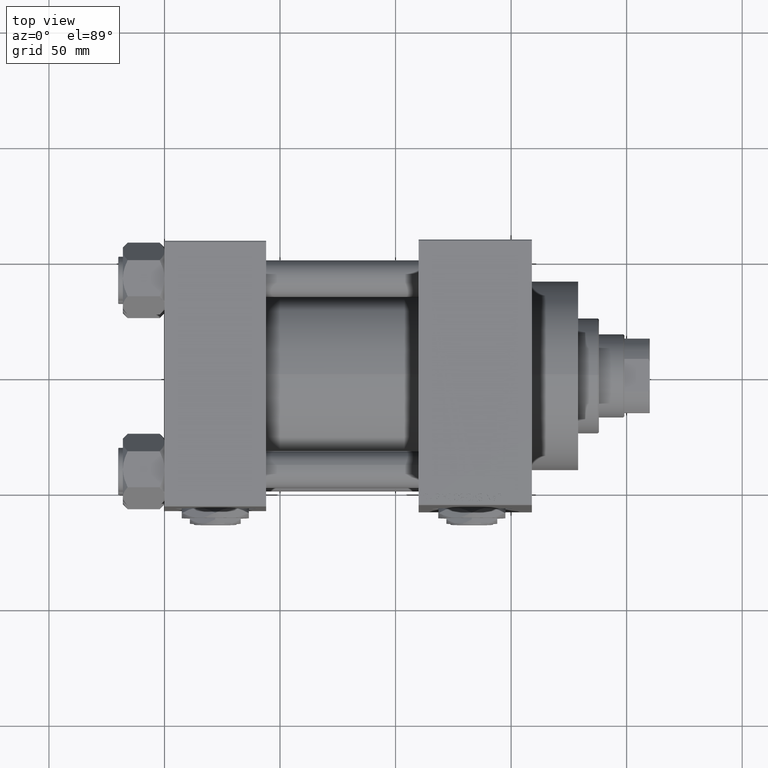
[diagram: clean part render]
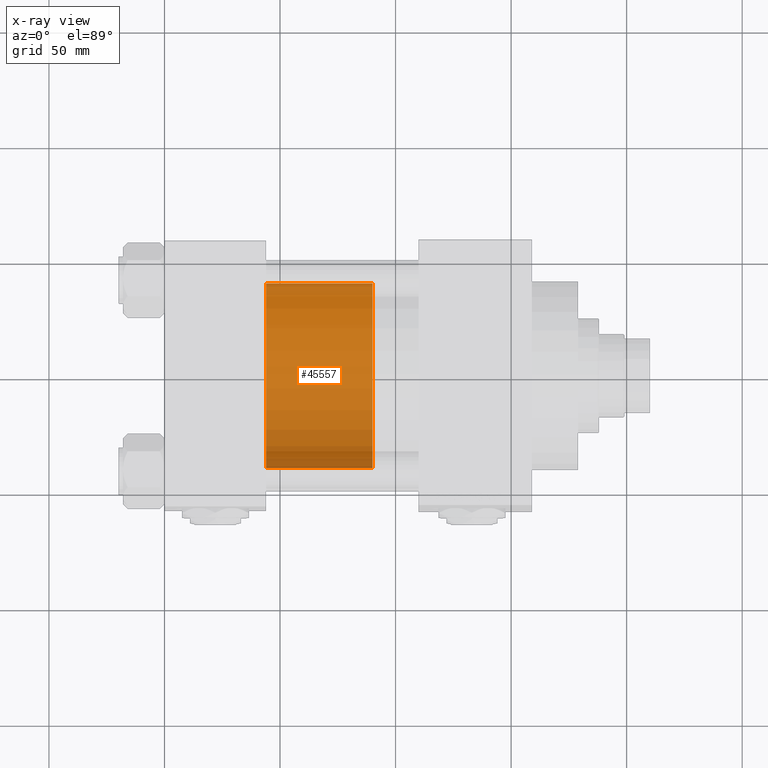
[diagram: x-ray — body ghosted, one internal face saturated and labeled with its STEP entity id]
A machine part, top view, then the same camera in x-ray: the body is ghosted and one INTERNAL B-rep face — a face not visible from any outside direction — is saturated and labeled: STEP entity #45557.
In plain terms, the highlighted cylindrical surface (partial cylindrical patch) has radius 40 mm, axis along (-1, 0, 0).
Its self-contained STEP definition (entity closure, byte-faithful):
#396 = VERTEX_POINT ( 'NONE', #13653 ) ;
#755 = CARTESIAN_POINT ( 'NONE',  ( -40.00000000000000000, 0.000000000000000000, 0.000000000000000000 ) ) ;
#2742 = DIRECTION ( 'NONE',  ( -0.000000000000000000, -0.000000000000000000, -1.000000000000000000 ) ) ;
#2961 = DIRECTION ( 'NONE',  ( 1.000000000000000000, 0.000000000000000000, 0.000000000000000000 ) ) ;
#3181 = CARTESIAN_POINT ( 'NONE',  ( -40.00000000000000000, 0.000000000000000000, 46.00000000000000000 ) ) ;
#3843 = VERTEX_POINT ( 'NONE', #19960 ) ;
#7971 = CYLINDRICAL_SURFACE ( 'NONE', #43949, 40.00000000000000000 ) ;
#9737 = DIRECTION ( 'NONE',  ( 0.000000000000000000, 0.000000000000000000, 1.000000000000000000 ) ) ;
#11751 = DIRECTION ( 'NONE',  ( -1.000000000000000000, 0.000000000000000000, 0.000000000000000000 ) ) ;
#11911 = EDGE_LOOP ( 'NONE', ( #35238, #43451, #16096, #18756 ) ) ;
#13653 = CARTESIAN_POINT ( 'NONE',  ( 40.00000000000000000, 4.898587196589413026E-15, 0.000000000000000000 ) ) ;
#14261 = AXIS2_PLACEMENT_3D ( 'NONE', #19309, #30649, #2961 ) ;
#16096 = ORIENTED_EDGE ( 'NONE', *, *, #46547, .T. ) ;
#16257 = DIRECTION ( 'NONE',  ( -0.000000000000000000, -0.000000000000000000, -1.000000000000000000 ) ) ;
#18364 = LINE ( 'NONE', #48049, #27805 ) ;
#18756 = ORIENTED_EDGE ( 'NONE', *, *, #23267, .F. ) ;
#19309 = CARTESIAN_POINT ( 'NONE',  ( 0.000000000000000000, 0.000000000000000000, 0.000000000000000000 ) ) ;
#19960 = CARTESIAN_POINT ( 'NONE',  ( 40.00000000000000000, 4.898587196589413026E-15, 46.00000000000000000 ) ) ;
#21261 = CIRCLE ( 'NONE', #44571, 40.00000000000000000 ) ;
#21818 = CARTESIAN_POINT ( 'NONE',  ( 0.000000000000000000, 0.000000000000000000, 46.00000000000000000 ) ) ;
#23267 = EDGE_CURVE ( 'NONE', #33398, #39982, #42190, .T. ) ;
#24593 = DIRECTION ( 'NONE',  ( 1.000000000000000000, 0.000000000000000000, 0.000000000000000000 ) ) ;
#27805 = VECTOR ( 'NONE', #2742, 1000.000000000000000 ) ;
#28650 = EDGE_CURVE ( 'NONE', #3843, #33398, #21261, .T. ) ;
#30649 = DIRECTION ( 'NONE',  ( 0.000000000000000000, 0.000000000000000000, 1.000000000000000000 ) ) ;
#33398 = VERTEX_POINT ( 'NONE', #43467 ) ;
#35238 = ORIENTED_EDGE ( 'NONE', *, *, #28650, .F. ) ;
#35395 = EDGE_CURVE ( 'NONE', #3843, #396, #18364, .T. ) ;
#35649 = CARTESIAN_POINT ( 'NONE',  ( 0.000000000000000000, 0.000000000000000000, 46.00000000000000000 ) ) ;
#39982 = VERTEX_POINT ( 'NONE', #755 ) ;
#42190 = LINE ( 'NONE', #3181, #49191 ) ;
#42425 = DIRECTION ( 'NONE',  ( -0.000000000000000000, -0.000000000000000000, -1.000000000000000000 ) ) ;
#43451 = ORIENTED_EDGE ( 'NONE', *, *, #35395, .T. ) ;
#43467 = CARTESIAN_POINT ( 'NONE',  ( -40.00000000000000000, 0.000000000000000000, 46.00000000000000000 ) ) ;
#43949 = AXIS2_PLACEMENT_3D ( 'NONE', #35649, #16257, #11751 ) ;
#43987 = CIRCLE ( 'NONE', #14261, 40.00000000000000000 ) ;
#44571 = AXIS2_PLACEMENT_3D ( 'NONE', #21818, #9737, #24593 ) ;
#45557 = ADVANCED_FACE ( 'NONE', ( #47797 ), #7971, .T. ) ;
#46547 = EDGE_CURVE ( 'NONE', #396, #39982, #43987, .T. ) ;
#47797 = FACE_OUTER_BOUND ( 'NONE', #11911, .T. ) ;
#48049 = CARTESIAN_POINT ( 'NONE',  ( 40.00000000000000000, 4.898587196589413026E-15, 46.00000000000000000 ) ) ;
#49191 = VECTOR ( 'NONE', #42425, 1000.000000000000000 ) ;